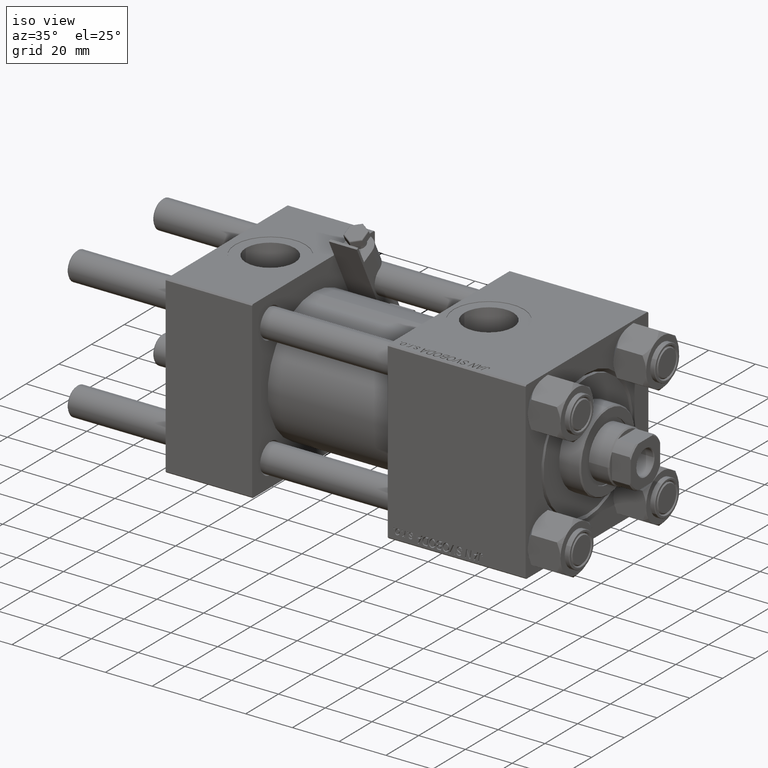
[diagram: clean part render]
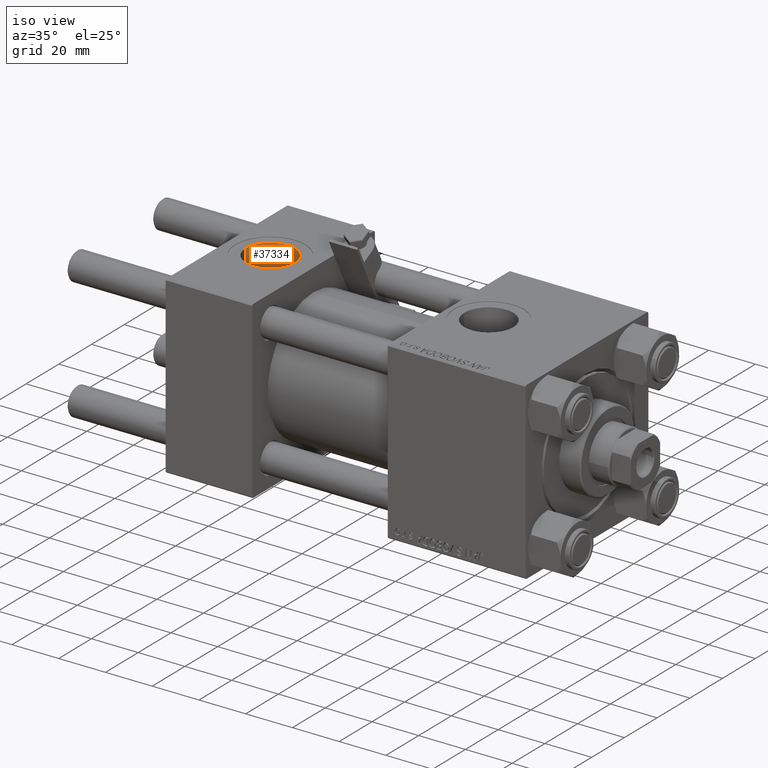
[diagram: same view with one face highlighted and labeled with its STEP entity id]
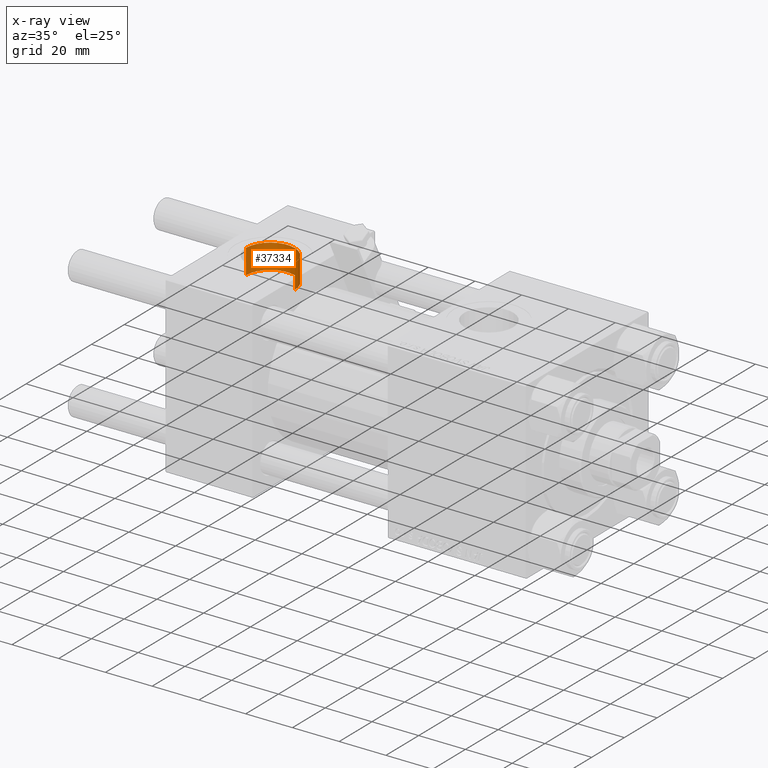
[diagram: x-ray of the same camera — body ghosted, the highlighted face saturated]
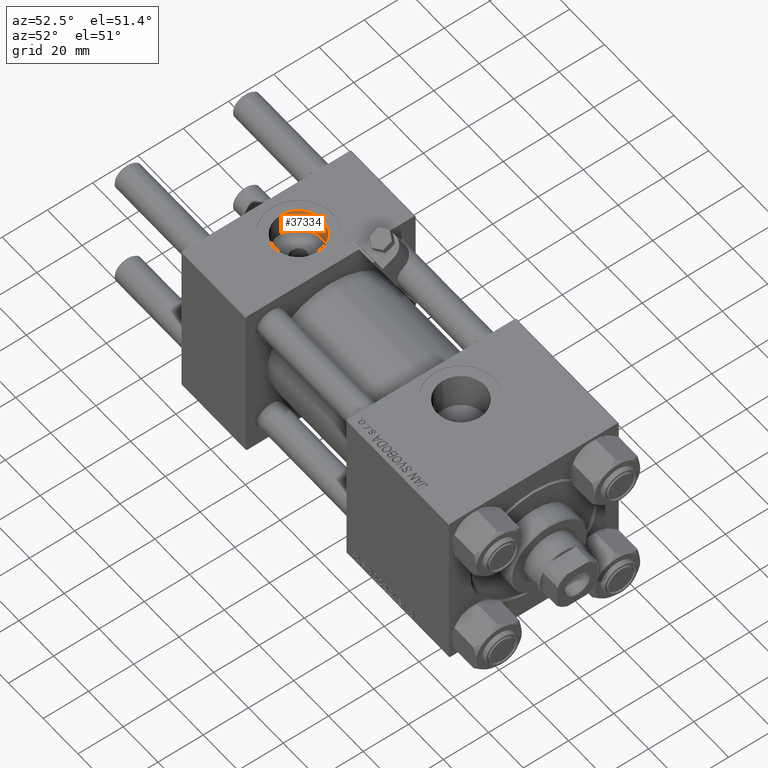
[diagram: same view with one face highlighted and labeled with its STEP entity id]
A machine part, iso view. The second image highlights one B-rep face of the part: STEP entity #37334.
The next image is the same camera in x-ray: the body ghosted, the highlighted face saturated — about 0% of this face is hidden behind the body in this view.
A second angle (auxiliary view) of the same face is appended — the face is thin or edge-on in the first view.
In plain terms, the highlighted cylindrical surface (edge-blend (fillet) strip) has radius 10.48 mm, axis along (0, 0, 1).
Its self-contained STEP definition (entity closure, byte-faithful):
#817 = CARTESIAN_POINT ( 'NONE',  ( 28.98000000000000043, -5.204170427930421283E-15, 26.69999999999999929 ) ) ;
#957 = ORIENTED_EDGE ( 'NONE', *, *, #2421, .F. ) ;
#1535 = ORIENTED_EDGE ( 'NONE', *, *, #16352, .T. ) ;
#2421 = EDGE_CURVE ( 'NONE', #28865, #24321, #49993, .T. ) ;
#4109 = EDGE_LOOP ( 'NONE', ( #957, #21809, #1535, #25512 ) ) ;
#5052 = AXIS2_PLACEMENT_3D ( 'NONE', #20091, #35237, #8029 ) ;
#6938 = CARTESIAN_POINT ( 'NONE',  ( 18.50000000000000000, -5.204170427930421283E-15, 26.69999999999999929 ) ) ;
#8029 = DIRECTION ( 'NONE',  ( 1.000000000000000000, 0.000000000000000000, 0.000000000000000000 ) ) ;
#9147 = VECTOR ( 'NONE', #9278, 1000.000000000000000 ) ;
#9278 = DIRECTION ( 'NONE',  ( -0.000000000000000000, -0.000000000000000000, 1.000000000000000000 ) ) ;
#11708 = CARTESIAN_POINT ( 'NONE',  ( 28.98000000000000043, -5.204170427930421283E-15, 26.69999999999999929 ) ) ;
#13339 = CIRCLE ( 'NONE', #24815, 10.48000000000000043 ) ;
#15591 = EDGE_CURVE ( 'NONE', #18592, #28865, #13339, .T. ) ;
#16352 = EDGE_CURVE ( 'NONE', #18592, #38654, #33151, .T. ) ;
#16929 = EDGE_CURVE ( 'NONE', #38654, #24321, #19826, .T. ) ;
#18464 = FACE_OUTER_BOUND ( 'NONE', #4109, .T. ) ;
#18592 = VERTEX_POINT ( 'NONE', #11708 ) ;
#19826 = CIRCLE ( 'NONE', #5052, 10.48000000000000043 ) ;
#20091 = CARTESIAN_POINT ( 'NONE',  ( 18.50000000000000000, -5.204170427930421283E-15, 37.29999999999999716 ) ) ;
#21809 = ORIENTED_EDGE ( 'NONE', *, *, #15591, .F. ) ;
#22842 = VECTOR ( 'NONE', #38682, 1000.000000000000000 ) ;
#24321 = VERTEX_POINT ( 'NONE', #34713 ) ;
#24815 = AXIS2_PLACEMENT_3D ( 'NONE', #6938, #29794, #45468 ) ;
#25512 = ORIENTED_EDGE ( 'NONE', *, *, #16929, .T. ) ;
#28865 = VERTEX_POINT ( 'NONE', #44648 ) ;
#29794 = DIRECTION ( 'NONE',  ( 0.000000000000000000, 0.000000000000000000, 1.000000000000000000 ) ) ;
#30264 = CYLINDRICAL_SURFACE ( 'NONE', #31541, 10.48000000000000043 ) ;
#31541 = AXIS2_PLACEMENT_3D ( 'NONE', #34120, #45939, #41827 ) ;
#33151 = LINE ( 'NONE', #817, #9147 ) ;
#34120 = CARTESIAN_POINT ( 'NONE',  ( 18.50000000000000000, -5.204170427930421283E-15, 26.69999999999999929 ) ) ;
#34713 = CARTESIAN_POINT ( 'NONE',  ( 8.019999999999999574, -3.920740582423995006E-15, 37.29999999999999716 ) ) ;
#34986 = CARTESIAN_POINT ( 'NONE',  ( 28.98000000000000043, -5.204170427930421283E-15, 37.29999999999999716 ) ) ;
#35237 = DIRECTION ( 'NONE',  ( 0.000000000000000000, 0.000000000000000000, 1.000000000000000000 ) ) ;
#37334 = ADVANCED_FACE ( 'NONE', ( #18464 ), #30264, .F. ) ;
#38654 = VERTEX_POINT ( 'NONE', #34986 ) ;
#38682 = DIRECTION ( 'NONE',  ( -0.000000000000000000, -0.000000000000000000, 1.000000000000000000 ) ) ;
#41827 = DIRECTION ( 'NONE',  ( 1.000000000000000000, 0.000000000000000000, 0.000000000000000000 ) ) ;
#44648 = CARTESIAN_POINT ( 'NONE',  ( 8.019999999999999574, -3.920740582423995006E-15, 26.69999999999999929 ) ) ;
#45377 = CARTESIAN_POINT ( 'NONE',  ( 8.019999999999999574, -3.920740582423995006E-15, 26.69999999999999929 ) ) ;
#45468 = DIRECTION ( 'NONE',  ( 1.000000000000000000, 0.000000000000000000, 0.000000000000000000 ) ) ;
#45939 = DIRECTION ( 'NONE',  ( -0.000000000000000000, -0.000000000000000000, 1.000000000000000000 ) ) ;
#49993 = LINE ( 'NONE', #45377, #22842 ) ;